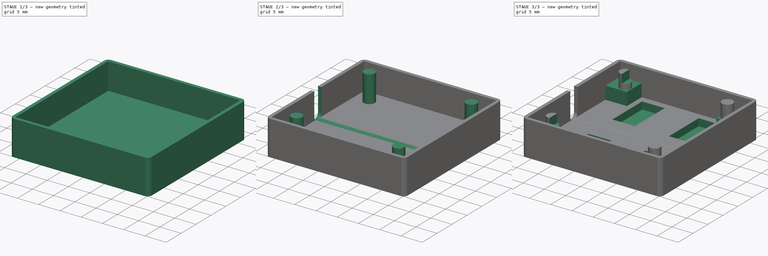
[diagram: build sequence overview — one tinted view per stage of 3, left to right]
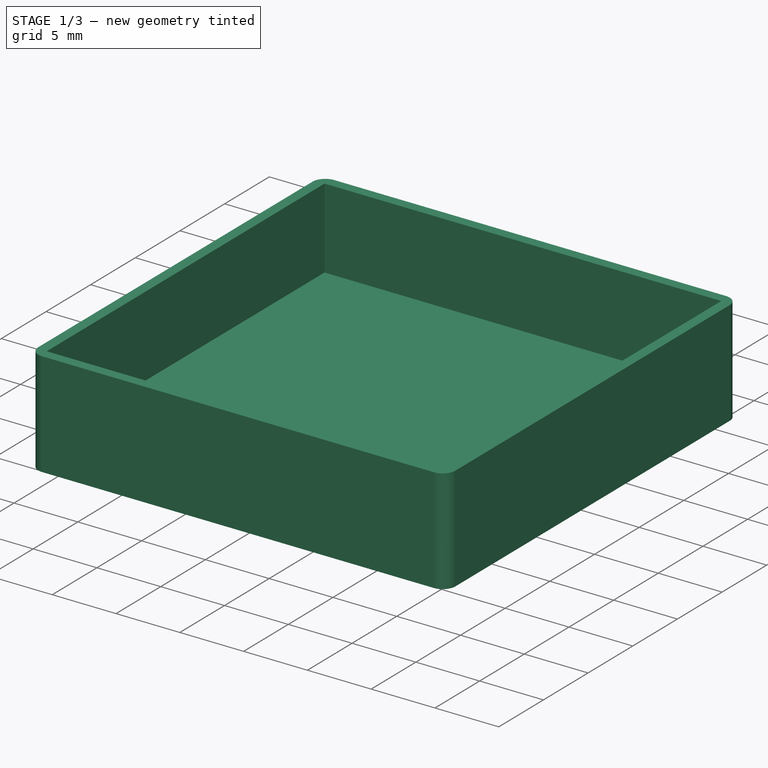
[diagram: stage 1 of 3 — iso view after this stage's code; geometry added in this stage tinted green]
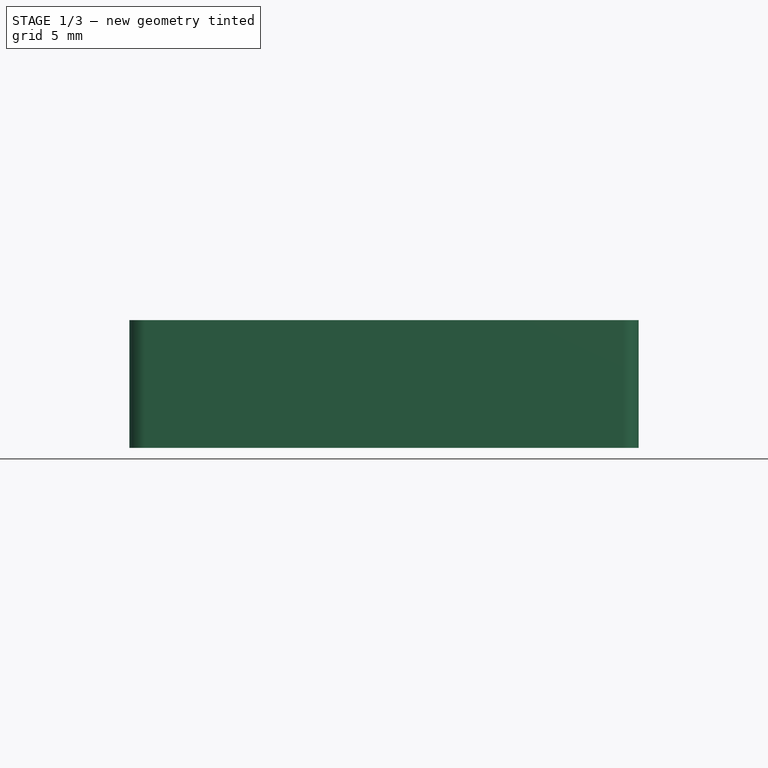
[diagram: stage 1 of 3 — front view after this stage's code; geometry added in this stage tinted green]
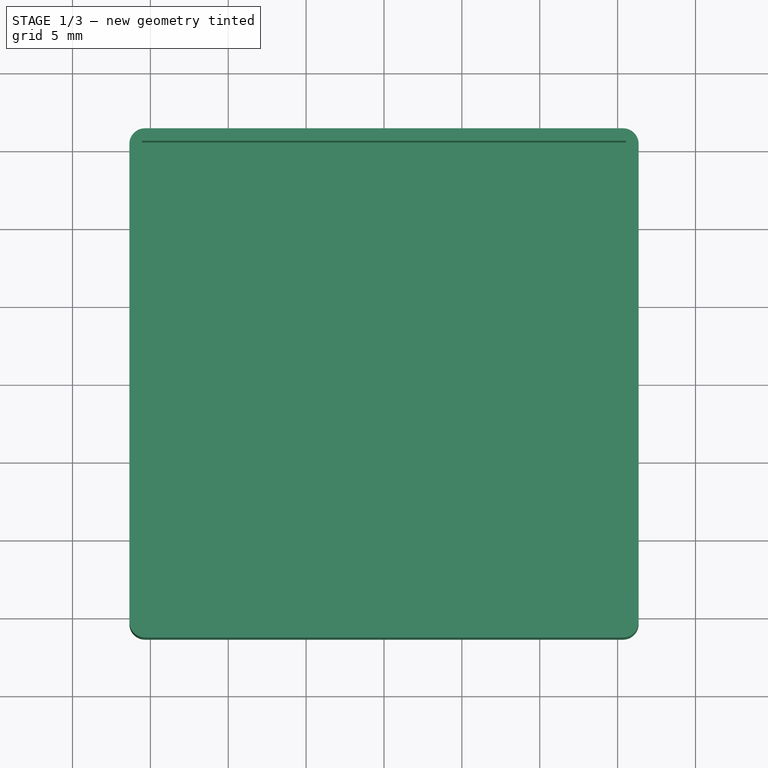
[diagram: stage 1 of 3 — top view after this stage's code; geometry added in this stage tinted green]
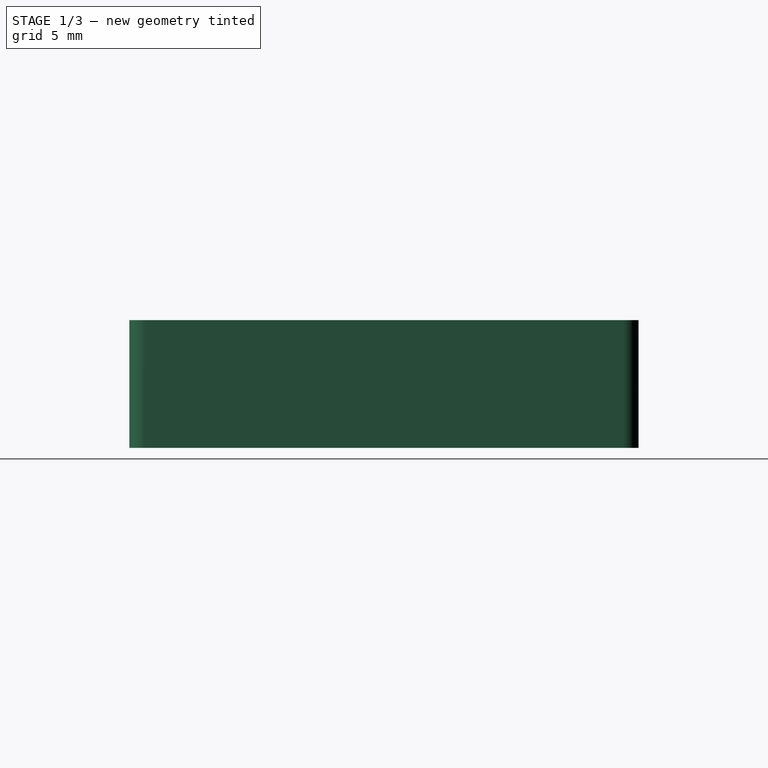
[diagram: stage 1 of 3 — right view after this stage's code; geometry added in this stage tinted green]
FCSTD DOCUMENT  (FreeCAD 0.20R29603 (Git))
Label: 128x64_donja_soldered
License: All rights reserved
LicenseURL: http://en.wikipedia.org/wiki/All_rights_reserved
objects: Sketcher::SketchObject×7, PartDesign::Pad×4, PartDesign::Pocket×3, PartDesign::Fillet×1, PartDesign::Body×1
note: 24 computed .brp shape members not serialized (recipe doc carries the construction recipe); baked Part::Feature solids carry a one-line shape summary decoded from their .brp

FEATURE [Sketcher::SketchObject] Sketch
  FullyConstrained = true
  MapMode = 5
  Support = -> [XY_Plane]
  sketch-geometry (8):
    g0: LineSegment StartX=-15.55 StartY=15.55 StartZ=0 EndX=15.55 EndY=15.55 EndZ=0
    g1: LineSegment StartX=15.55 StartY=15.55 StartZ=0 EndX=15.55 EndY=-15.55 EndZ=0
    g2: LineSegment StartX=15.55 StartY=-15.55 StartZ=0 EndX=-15.55 EndY=-15.55 EndZ=0
    g3: LineSegment StartX=-15.55 StartY=-15.55 StartZ=0 EndX=-15.55 EndY=15.55 EndZ=0
    g4: LineSegment StartX=-16.35 StartY=16.35 StartZ=0 EndX=16.35 EndY=16.35 EndZ=0
    g5: LineSegment StartX=16.35 StartY=16.35 StartZ=0 EndX=16.35 EndY=-16.35 EndZ=0
    g6: LineSegment StartX=16.35 StartY=-16.35 StartZ=0 EndX=-16.35 EndY=-16.35 EndZ=0
    g7: LineSegment StartX=-16.35 StartY=-16.35 StartZ=0 EndX=-16.35 EndY=16.35 EndZ=0
  constraints (22):
    c: Coincident(g0,g1)
    c: Coincident(g1,g2)
    c: Coincident(g2,g3)
    c: Coincident(g3,g0)
    c: Horizontal(g0)
    c: Vertical(g3)
    c: Symmetric(g2,g1,g-2)
    c: Symmetric(g1,g0,g-1)
    c: DistanceX(g2,g2) = 31.1
    c: DistanceY(g1,g1) = 31.1
    c: Coincident(g4,g5)
    c: Coincident(g5,g6)
    c: Coincident(g6,g7)
    c: Coincident(g7,g4)
    c: Horizontal(g4)
    c: Vertical(g7)
    c: Symmetric(g6,g5,g-2)
    c: Symmetric(g4,g5,g-1)
    c: DistanceX(g6,g6) = 32.7
    c: DistanceY(g5,g5) = 32.7
    c: DistanceX(g6,g2) = 0.8
    c: DistanceY(g5,g1) = 0.8
FEATURE [PartDesign::Pad] Pad
  Direction = (0,0,1)
  Length = 6.3
  Length2 = 10
  Profile = -> Sketch
  ReferenceAxis = -> Sketch [N_Axis]
  Type = 0
FEATURE [Sketcher::SketchObject] Sketch001
  FullyConstrained = true
  MapMode = 5
  Placement = pos=(0,0,0) rot=(1,0,0;3.14159rad)
  Support = -> [Pad]
  sketch-geometry (4):
    g0: LineSegment StartX=-16.35 StartY=16.35 StartZ=0 EndX=16.35 EndY=16.35 EndZ=0
    g1: LineSegment StartX=16.35 StartY=16.35 StartZ=0 EndX=16.35 EndY=-16.35 EndZ=0
    g2: LineSegment StartX=16.35 StartY=-16.35 StartZ=0 EndX=-16.35 EndY=-16.35 EndZ=0
    g3: LineSegment StartX=-16.35 StartY=-16.35 StartZ=0 EndX=-16.35 EndY=16.35 EndZ=0
  constraints (10):
    c: Coincident(g0,g1)
    c: Coincident(g1,g2)
    c: Coincident(g2,g3)
    c: Coincident(g3,g0)
    c: Horizontal(g0)
    c: Vertical(g3)
    c: Symmetric(g2,g1,g-2)
    c: Symmetric(g1,g0,g-1)
    c: DistanceX(g2,g2) = 32.7
    c: DistanceY(g1,g1) = 32.7
FEATURE [PartDesign::Pad] Pad001
  BaseFeature = -> Pad
  Direction = (0,0,-1)
  Length = 1.9
  Length2 = 10
  Profile = -> Sketch001
  ReferenceAxis = -> Sketch001 [N_Axis]
  Type = 0
FEATURE [PartDesign::Fillet] Fillet
  Base = -> Pad001 [Edge1,Edge2,Edge5,Edge8]
  BaseFeature = -> Pad001
  Radius = 1
  SupportTransform = false
  UseAllEdges = false
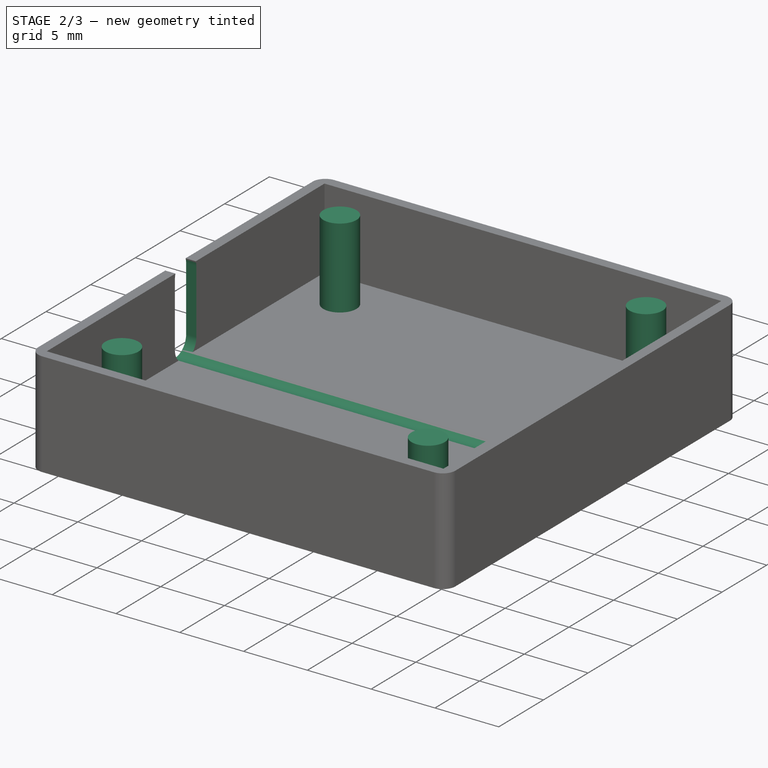
[diagram: stage 2 of 3 — iso view after this stage's code; geometry added in this stage tinted green]
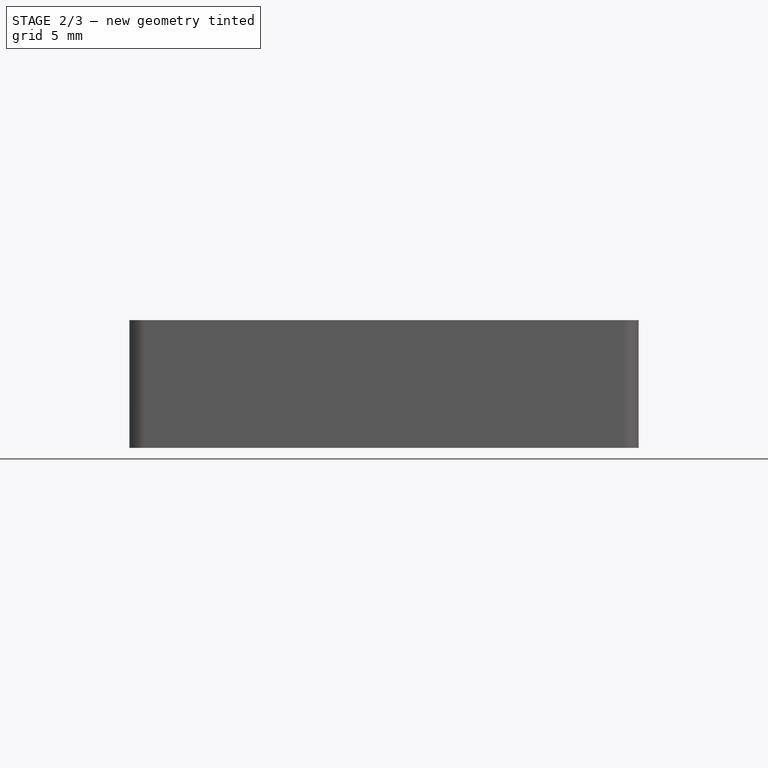
[diagram: stage 2 of 3 — front view after this stage's code; geometry added in this stage tinted green]
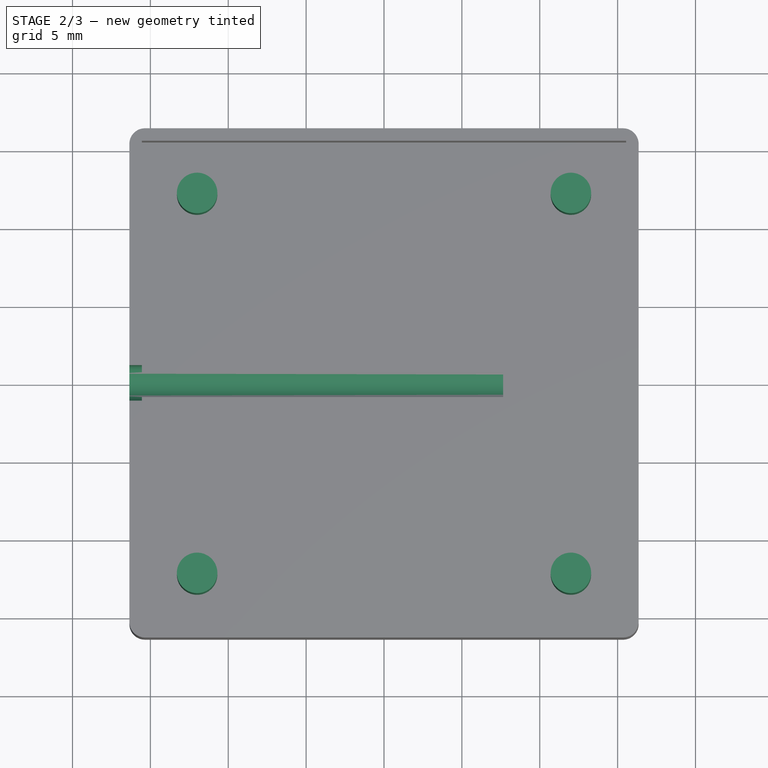
[diagram: stage 2 of 3 — top view after this stage's code; geometry added in this stage tinted green]
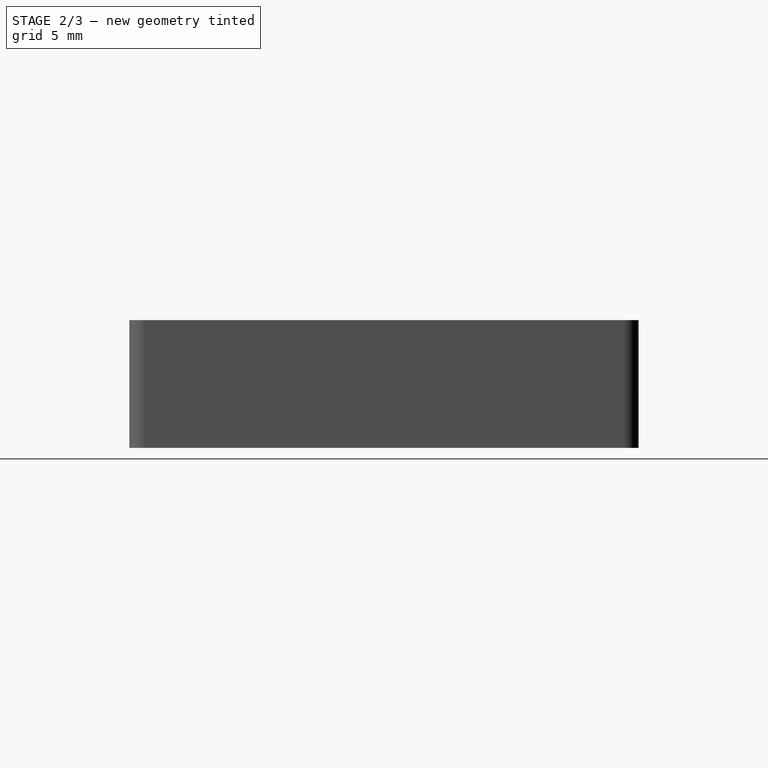
[diagram: stage 2 of 3 — right view after this stage's code; geometry added in this stage tinted green]
FEATURE [Sketcher::SketchObject] Sketch002
  FullyConstrained = false
  MapMode = 5
  Placement = pos=(-16.35,0,0) rot=(0.57735,-0.57735,-0.57735;2.0944rad)
  Support = -> [Fillet]
  sketch-geometry (4):
    g0: ArcOfCircle CenterX=-1.178e-13 CenterY=5.91714 CenterZ=0 NormalX=0 NormalY=0 NormalZ=1 AngleXU=0 Radius=1.2 StartAngle=4.7e-14 EndAngle=3.14159
    g1: ArcOfCircle CenterX=0 CenterY=0.9 CenterZ=0 NormalX=0 NormalY=0 NormalZ=1 AngleXU=0 Radius=1.2 StartAngle=3.14159 EndAngle=6.28319
    g2: LineSegment StartX=-1.2 StartY=5.91714 StartZ=0 EndX=-1.2 EndY=0.9 EndZ=0
    g3: LineSegment StartX=1.2 StartY=0.9 StartZ=0 EndX=1.2 EndY=5.91714 EndZ=0
  constraints (9):
    c: Tangent(g0,g2) = -1.5708
    c: Tangent(g2,g1) = -1.5708
    c: Tangent(g1,g3) = -1.5708
    c: Tangent(g3,g0) = -1.5708
    c: Equal(g0,g1)
    c: Vertical(g2)
    c: Diameter(g1) = 2.4
    c: DistanceY(g-1,g1) = 0.9
    c: DistanceX(g-1,g1) = 0
FEATURE [PartDesign::Pocket] Pocket
  BaseFeature = -> Fillet
  Direction = (1,0,0)
  Length = 24
  Length2 = 5
  Profile = -> Sketch002
  ReferenceAxis = -> Sketch002 [N_Axis]
  Type = 0
FEATURE [Sketcher::SketchObject] Sketch003
  FullyConstrained = true
  MapMode = 5
  Support = -> [Pocket]
  sketch-geometry (4):
    g0: Circle CenterX=12 CenterY=12.2 CenterZ=0 NormalX=0 NormalY=0 NormalZ=1 AngleXU=0 Radius=1.3
    g1: Circle CenterX=12 CenterY=-12.2 CenterZ=0 NormalX=0 NormalY=0 NormalZ=1 AngleXU=0 Radius=1.3
    g2: Circle CenterX=-12 CenterY=12.2 CenterZ=0 NormalX=0 NormalY=0 NormalZ=1 AngleXU=0 Radius=1.3
    g3: Circle CenterX=-12 CenterY=-12.2 CenterZ=0 NormalX=0 NormalY=0 NormalZ=1 AngleXU=0 Radius=1.3
  constraints (10):
    c: Equal(g1,g0)
    c: Diameter(g0) = 2.6
    c: Symmetric(g1,g0,g-1)
    c: DistanceY(g-1,g0) = 12.2
    c: DistanceX(g-1,g0) = 12
    c: Equal(g3,g2)
    c: Equal(g2,g0)
    c: Symmetric(g3,g2,g-1)
    c: DistanceY(g-1,g2) = 12.2
    c: DistanceX(g3,g-1) = 12
FEATURE [PartDesign::Pad] Pad002
  BaseFeature = -> Pocket
  Direction = (0,0,1)
  Length = 6.3
  Length2 = 10
  Profile = -> Sketch003
  ReferenceAxis = -> Sketch003 [N_Axis]
  Type = 0
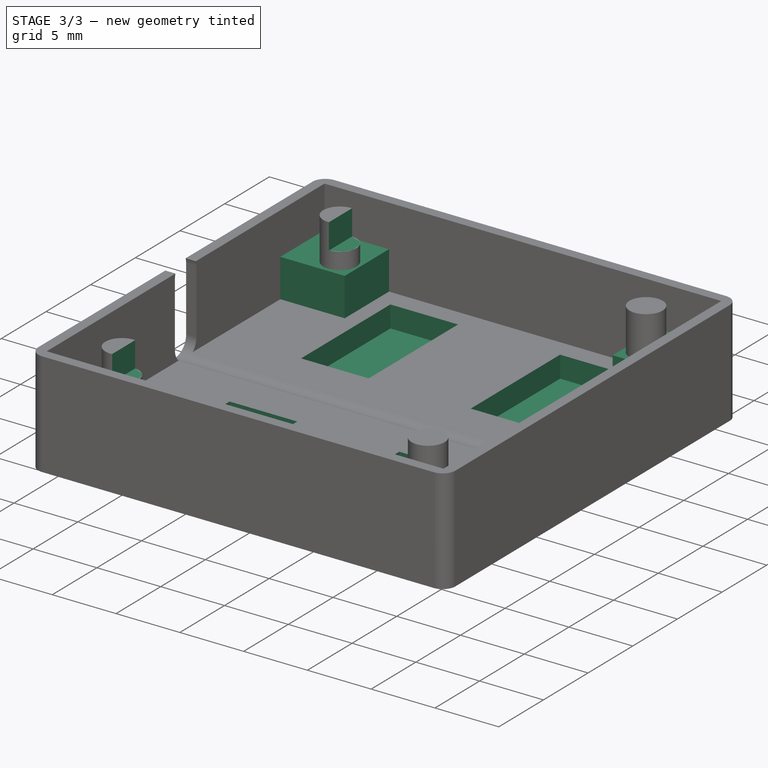
[diagram: stage 3 of 3 — iso view after this stage's code; geometry added in this stage tinted green]
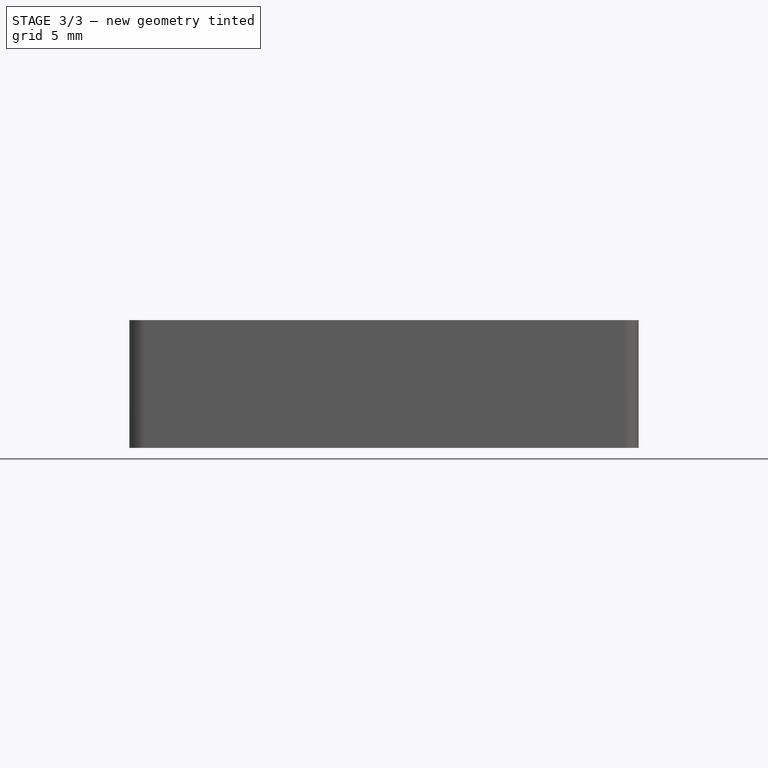
[diagram: stage 3 of 3 — front view after this stage's code; geometry added in this stage tinted green]
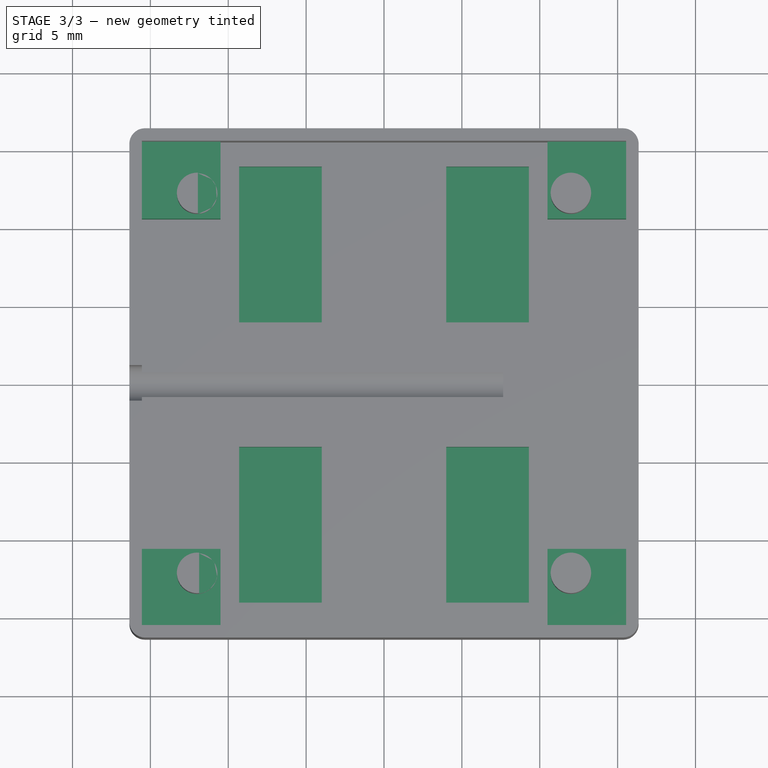
[diagram: stage 3 of 3 — top view after this stage's code; geometry added in this stage tinted green]
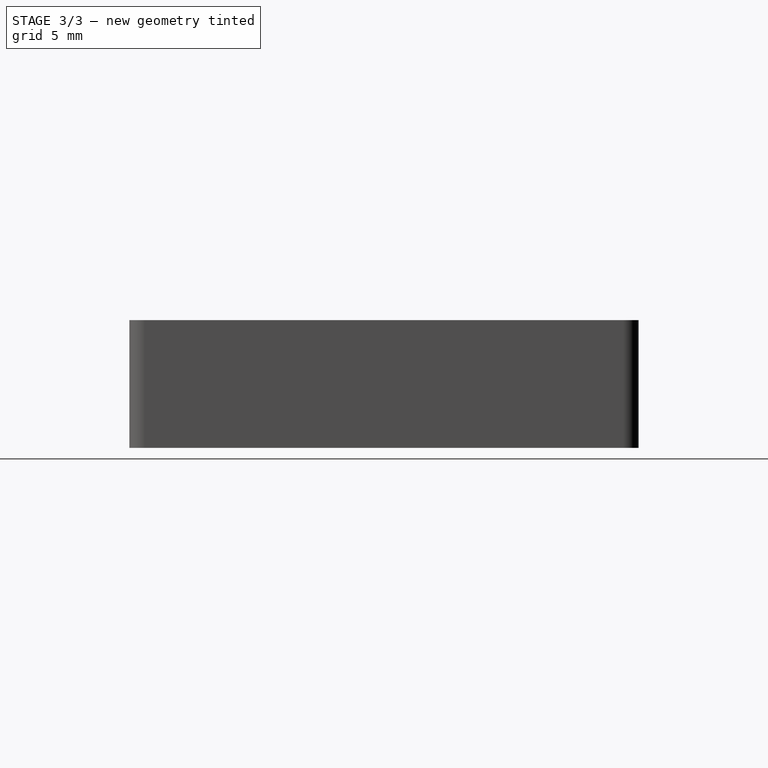
[diagram: stage 3 of 3 — right view after this stage's code; geometry added in this stage tinted green]
FEATURE [Sketcher::SketchObject] Sketch004
  FullyConstrained = true
  MapMode = 5
  Support = -> [Pad002]
  sketch-geometry (16):
    g0: LineSegment StartX=-9.3 StartY=14 StartZ=0 EndX=-4 EndY=14 EndZ=0
    g1: LineSegment StartX=-4 StartY=14 StartZ=0 EndX=-4 EndY=4 EndZ=0
    g2: LineSegment StartX=-4 StartY=4 StartZ=0 EndX=-9.3 EndY=4 EndZ=0
    g3: LineSegment StartX=-9.3 StartY=4 StartZ=0 EndX=-9.3 EndY=14 EndZ=0
    g4: LineSegment StartX=4 StartY=14 StartZ=0 EndX=9.3 EndY=14 EndZ=0
    g5: LineSegment StartX=9.3 StartY=14 StartZ=0 EndX=9.3 EndY=4 EndZ=0
    g6: LineSegment StartX=9.3 StartY=4 StartZ=0 EndX=4 EndY=4 EndZ=0
    g7: LineSegment StartX=4 StartY=4 StartZ=0 EndX=4 EndY=14 EndZ=0
    g8: LineSegment StartX=-9.3 StartY=-4 StartZ=0 EndX=-4 EndY=-4 EndZ=0
    g9: LineSegment StartX=-4 StartY=-4 StartZ=0 EndX=-4 EndY=-14 EndZ=0
    g10: LineSegment StartX=-4 StartY=-14 StartZ=0 EndX=-9.3 EndY=-14 EndZ=0
    g11: LineSegment StartX=-9.3 StartY=-14 StartZ=0 EndX=-9.3 EndY=-4 EndZ=0
    g12: LineSegment StartX=4 StartY=-4 StartZ=0 EndX=9.3 EndY=-4 EndZ=0
    g13: LineSegment StartX=9.3 StartY=-4 StartZ=0 EndX=9.3 EndY=-14 EndZ=0
    g14: LineSegment StartX=9.3 StartY=-14 StartZ=0 EndX=4 EndY=-14 EndZ=0
    g15: LineSegment StartX=4 StartY=-14 StartZ=0 EndX=4 EndY=-4 EndZ=0
  constraints (45):
    c: Coincident(g0,g1)
    c: Coincident(g1,g2)
    c: Coincident(g2,g3)
    c: Coincident(g3,g0)
    c: Horizontal(g0)
    c: Horizontal(g2)
    c: Vertical(g1)
    c: Vertical(g3)
    c: Coincident(g4,g5)
    c: Coincident(g5,g6)
    c: Coincident(g6,g7)
    c: Coincident(g7,g4)
    c: Horizontal(g4)
    c: Horizontal(g6)
    c: Vertical(g5)
    c: Vertical(g7)
    c: Coincident(g8,g9)
    c: Coincident(g9,g10)
    c: Coincident(g10,g11)
    c: Coincident(g11,g8)
    c: Horizontal(g8)
    c: Horizontal(g10)
    c: Vertical(g9)
    c: Vertical(g11)
    c: Coincident(g12,g13)
    c: Coincident(g13,g14)
    c: Coincident(g14,g15)
    c: Coincident(g15,g12)
    c: Horizontal(g12)
    c: Horizontal(g14)
    c: Vertical(g13)
    c: Vertical(g15)
    c: DistanceY(g1,g1) = 10
    c: DistanceX(g2,g2) = 5.3
    c: Equal(g1,g5)
    c: Equal(g5,g13)
    c: Equal(g13,g9)
    c: Equal(g2,g6)
    c: Equal(g6,g12)
    c: Equal(g12,g8)
    c: Symmetric(g8,g12,g-2)
    c: Symmetric(g1,g6,g-2)
    c: Symmetric(g1,g8,g-1)
    c: DistanceX(g-1,g12) = 4
    c: DistanceY(g12,g-1) = 4
FEATURE [PartDesign::Pocket] Pocket001
  BaseFeature = -> Pad002
  Direction = (0,0,-1)
  Length = 1.7
  Length2 = 5
  Profile = -> Sketch004
  ReferenceAxis = -> Sketch004 [N_Axis]
  Type = 0
FEATURE [Sketcher::SketchObject] Sketch005
  FullyConstrained = true
  MapMode = 5
  Support = -> [Pocket001]
  sketch-geometry (16):
    g0: LineSegment StartX=10.5 StartY=15.9 StartZ=0 EndX=15.8 EndY=15.9 EndZ=0
    g1: LineSegment StartX=15.8 StartY=15.9 StartZ=0 EndX=15.8 EndY=10.6 EndZ=0
    g2: LineSegment StartX=15.8 StartY=10.6 StartZ=0 EndX=10.5 EndY=10.6 EndZ=0
    g3: LineSegment StartX=10.5 StartY=10.6 StartZ=0 EndX=10.5 EndY=15.9 EndZ=0
    g4: LineSegment StartX=10.5 StartY=-10.6 StartZ=0 EndX=15.8 EndY=-10.6 EndZ=0
    g5: LineSegment StartX=15.8 StartY=-10.6 StartZ=0 EndX=15.8 EndY=-15.9 EndZ=0
    g6: LineSegment StartX=15.8 StartY=-15.9 StartZ=0 EndX=10.5 EndY=-15.9 EndZ=0
    g7: LineSegment StartX=10.5 StartY=-15.9 StartZ=0 EndX=10.5 EndY=-10.6 EndZ=0
    g8: LineSegment StartX=-10.5 StartY=-10.6 StartZ=0 EndX=-15.8 EndY=-10.6 EndZ=0
    g9: LineSegment StartX=-15.8 StartY=-10.6 StartZ=0 EndX=-15.8 EndY=-15.9 EndZ=0
    g10: LineSegment StartX=-15.8 StartY=-15.9 StartZ=0 EndX=-10.5 EndY=-15.9 EndZ=0
    g11: LineSegment StartX=-10.5 StartY=-15.9 StartZ=0 EndX=-10.5 EndY=-10.6 EndZ=0
    g12: LineSegment StartX=-10.5 StartY=10.6 StartZ=0 EndX=-15.8 EndY=10.6 EndZ=0
    g13: LineSegment StartX=-15.8 StartY=10.6 StartZ=0 EndX=-15.8 EndY=15.9 EndZ=0
    g14: LineSegment StartX=-15.8 StartY=15.9 StartZ=0 EndX=-10.5 EndY=15.9 EndZ=0
    g15: LineSegment StartX=-10.5 StartY=15.9 StartZ=0 EndX=-10.5 EndY=10.6 EndZ=0
  constraints (45):
    c: Coincident(g0,g1)
    c: Coincident(g1,g2)
    c: Coincident(g2,g3)
    c: Coincident(g3,g0)
    c: Horizontal(g0)
    c: Horizontal(g2)
    c: Vertical(g1)
    c: Vertical(g3)
    c: Coincident(g4,g5)
    c: Coincident(g5,g6)
    c: Coincident(g6,g7)
    c: Coincident(g7,g4)
    c: Horizontal(g4)
    c: Horizontal(g6)
    c: Vertical(g5)
    c: Vertical(g7)
    c: Coincident(g8,g9)
    c: Coincident(g9,g10)
    c: Coincident(g10,g11)
    c: Coincident(g11,g8)
    c: Horizontal(g8)
    c: Horizontal(g10)
    c: Vertical(g9)
    c: Vertical(g11)
    c: Coincident(g12,g13)
    c: Coincident(g13,g14)
    c: Coincident(g14,g15)
    c: Coincident(g15,g12)
    c: Horizontal(g12)
    c: Horizontal(g14)
    c: Vertical(g13)
    c: Vertical(g15)
    c: Symmetric(g8,g12,g-1)
    c: Symmetric(g2,g4,g-1)
    c: Symmetric(g2,g12,g-2)
    c: DistanceX(g-1,g2) = 10.5
    c: DistanceY(g-1,g2) = 10.6
    c: Equal(g12,g2)
    c: Equal(g2,g4)
    c: Equal(g4,g8)
    c: DistanceY(g3,g3) = 5.3
    c: Equal(g3,g15)
    c: Equal(g15,g11)
    c: Equal(g11,g7)
    c: DistanceX(g2,g2) = 5.3
FEATURE [PartDesign::Pad] Pad003
  BaseFeature = -> Pocket001
  Direction = (0,0,1)
  Length = 3
  Length2 = 10
  Profile = -> Sketch005
  ReferenceAxis = -> Sketch005 [N_Axis]
  Type = 0
FEATURE [Sketcher::SketchObject] Sketch006
  FullyConstrained = false
  MapMode = 5
  Placement = pos=(0,0,6.3) rot=(0,0,1;0rad)
  Support = -> [Pad003]
  sketch-geometry (8):
    g0: LineSegment StartX=-11.9515 StartY=14.4555 StartZ=0 EndX=-9.93893 EndY=14.4555 EndZ=0
    g1: LineSegment StartX=-9.93893 StartY=14.4555 StartZ=0 EndX=-9.93893 EndY=9.67557 EndZ=0
    g2: LineSegment StartX=-9.93893 StartY=9.67557 StartZ=0 EndX=-11.9515 EndY=9.67557 EndZ=0
    g3: LineSegment StartX=-11.9515 StartY=9.67557 StartZ=0 EndX=-11.9515 EndY=14.4555 EndZ=0
    g4: LineSegment StartX=-11.8677 StartY=-9.94735 StartZ=0 EndX=-10.1066 EndY=-9.94735 EndZ=0
    g5: LineSegment StartX=-10.1066 StartY=-9.94735 StartZ=0 EndX=-10.1066 EndY=-14.4757 EndZ=0
    g6: LineSegment StartX=-10.1066 StartY=-14.4757 StartZ=0 EndX=-11.8677 EndY=-14.4757 EndZ=0
    g7: LineSegment StartX=-11.8677 StartY=-14.4757 StartZ=0 EndX=-11.8677 EndY=-9.94735 EndZ=0
  constraints (16):
    c: Coincident(g0,g1)
    c: Coincident(g1,g2)
    c: Coincident(g2,g3)
    c: Coincident(g3,g0)
    c: Horizontal(g0)
    c: Horizontal(g2)
    c: Vertical(g1)
    c: Vertical(g3)
    c: Coincident(g4,g5)
    c: Coincident(g5,g6)
    c: Coincident(g6,g7)
    c: Coincident(g7,g4)
    c: Horizontal(g4)
    c: Horizontal(g6)
    c: Vertical(g5)
    c: Vertical(g7)
FEATURE [PartDesign::Pocket] Pocket002
  BaseFeature = -> Pad003
  Direction = (0,0,-1)
  Length = 2
  Length2 = 5
  Profile = -> Sketch006
  ReferenceAxis = -> Sketch006 [N_Axis]
  Type = 0
FEATURE [PartDesign::Body] Body
  Group = -> [Sketch,Pad,Sketch001,Pad001,Fillet,Sketch002,Pocket,Sketch003,Pad002,Sketch004,Pocket001,Sketch005,Pad003,Sketch006,Pocket002]
  Origin = -> Origin
  Tip = -> Pocket002
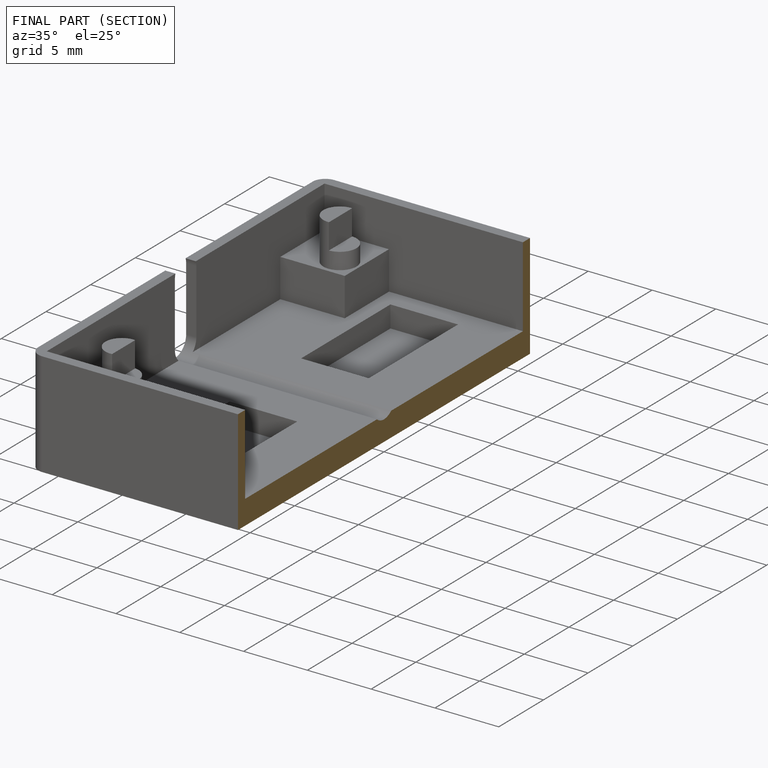
[diagram: finished part — half-section view (interior)]
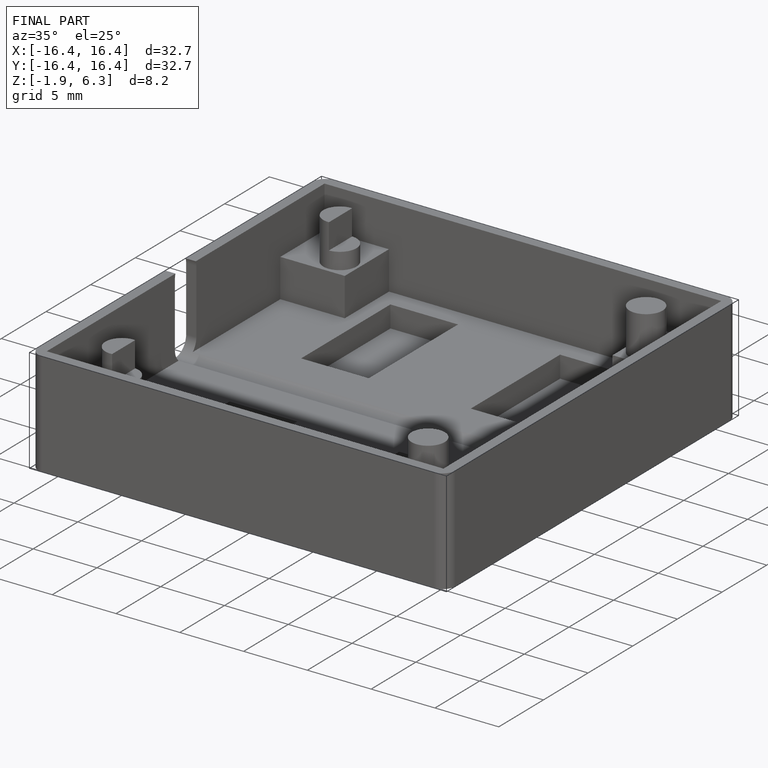
[diagram: finished part — iso view with bounding-box wireframe]
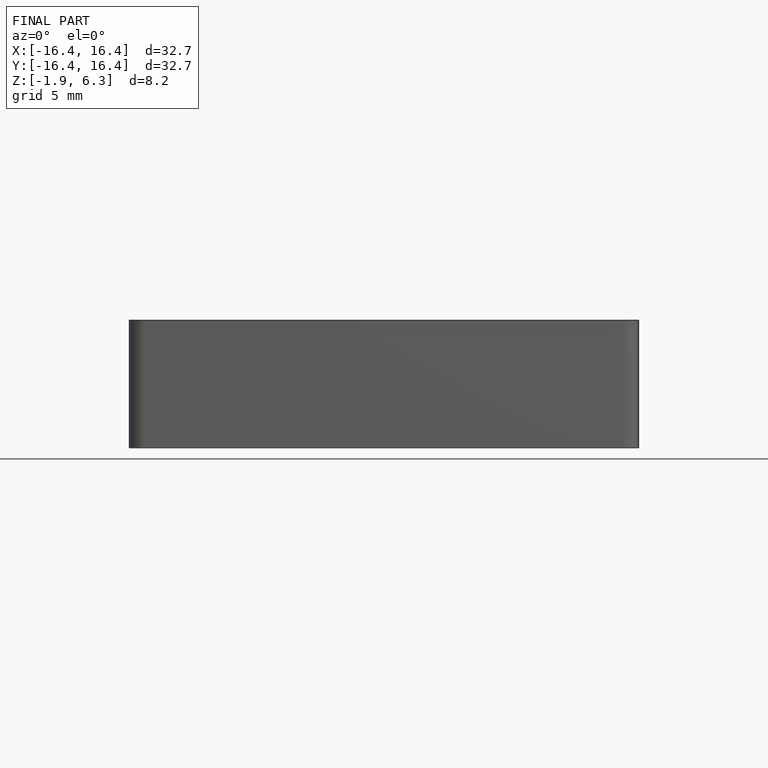
[diagram: finished part — front view with bounding-box wireframe]
